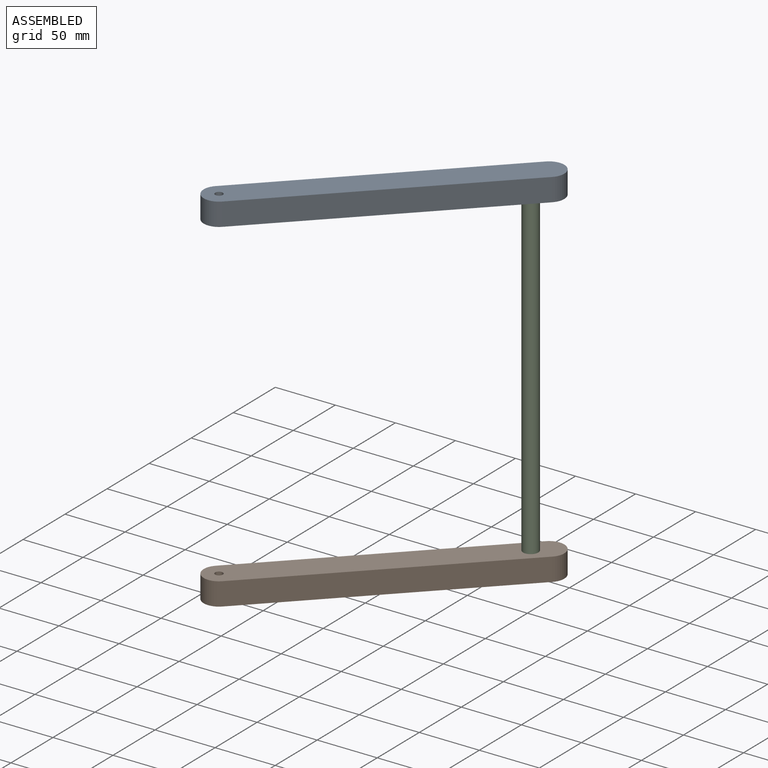
[diagram: assembled view]
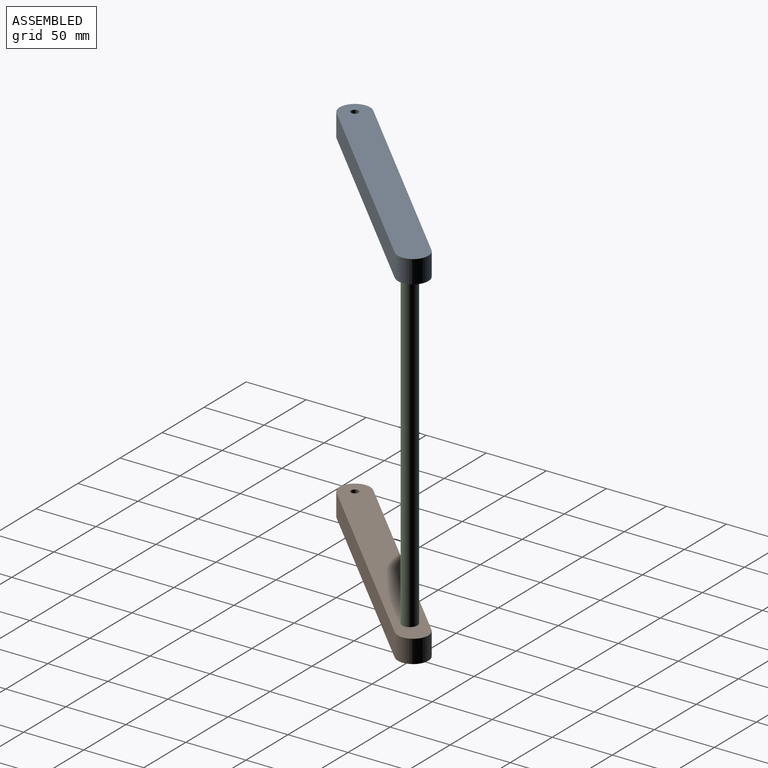
[diagram: assembled view, second angle]
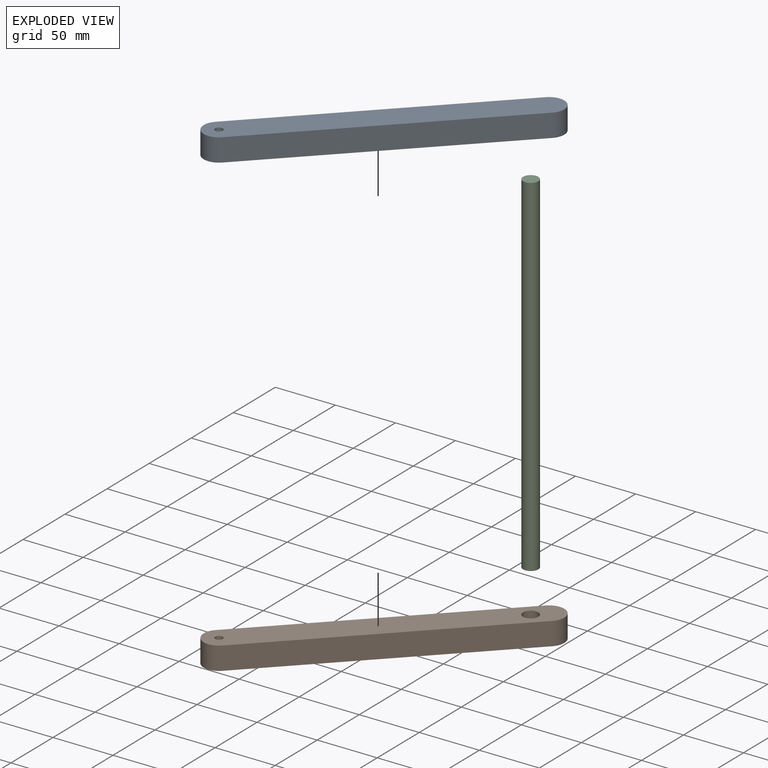
[diagram: exploded view]
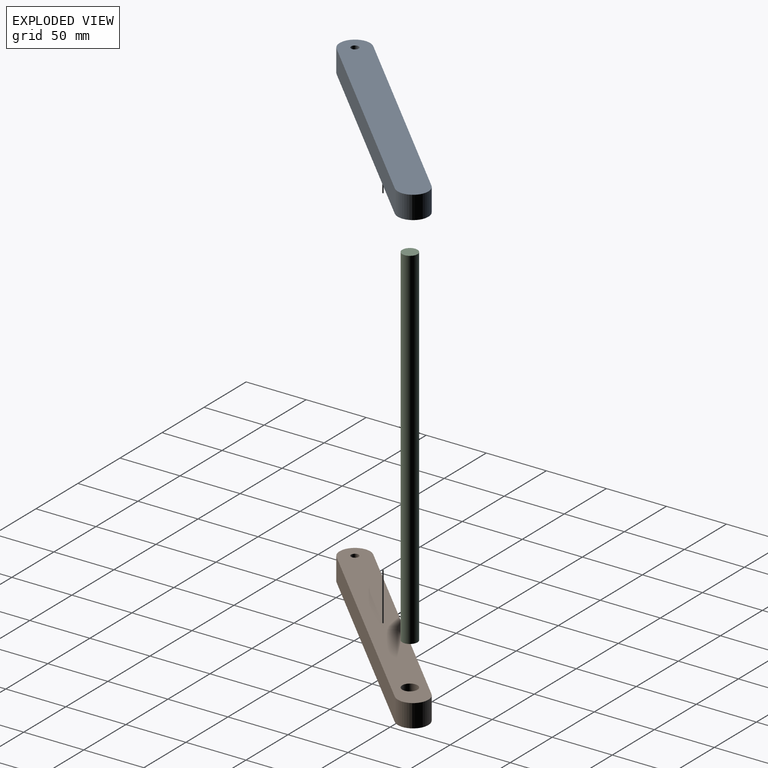
[diagram: exploded view, second angle]
ASSEMBLY  parts=3 mates=2
PART A: 9 faces, bbox 25.4x19.1x254 mm
  f0: plane 228.6x19.05mm, normal (1,0,0), area 4354.8mm2, adj f1,f3,f4,f5
  f1: cylinder r=12.7mm len=25.4mm, axis (0,1,0), area 760.1mm2, adj f0,f2,f4,f5
  f2: plane 228.6x19.05mm, normal (-1,0,0), area 4354.8mm2, adj f1,f3,f4,f5
  f3: cylinder r=12.7mm len=25.4mm, axis (0,1,0), area 760.1mm2, adj f0,f2,f4,f5
  f4: plane 254x25.4mm, normal (0,-1,0), area 6154.8mm2, adj f0,f1,f2,f3,f6,f8
  f5: plane 254x25.4mm, normal (0,1,0), area 6281.5mm2, adj f0,f1,f2,f3,f8
  f6: cylinder r=6.35mm len=12.7mm, axis (0,-1,0), area 506.7mm2, adj f4,f7
  f7: plane 12.7x12.7mm, normal (0,-1,0), area 126.7mm2, adj f6
  f8: cylinder r=3.17mm len=19.05mm, axis (0,-1,0), area 380mm2, adj f4,f5
PART B: same geometry as A
PART C: 3 faces, bbox 12.7x292.1x12.7 mm
  f0: cylinder r=6.35mm len=292.1mm, axis (0,1,0), area 11654.3mm2, adj f1,f2
  f1: plane 12.7x12.7mm, normal (0,-1,0), area 126.7mm2, adj f0
  f2: plane 12.7x12.7mm, normal (0,1,0), area 126.7mm2, adj f0
PLACE A rot(axis=(0.86,-0.36,-0.36),98.4deg) t=(-187.8,-166.52,541.91)mm
PLACE B rot(axis=(-0.28,-0.68,0.68),148.6deg) t=(-187.8,-166.52,237.11)mm
PLACE C rot(axis=(0.86,-0.36,-0.36),98.4deg) t=(-115.96,-94.68,535.56)mm
MATE fastened A.f6 <-> C.f0  axis (0,0,-1) through (-115.96,-94.68,535.56)mm
MATE fastened B.f6 <-> C.f0  axis (0,0,1) through (-115.96,-94.68,243.46)mm
